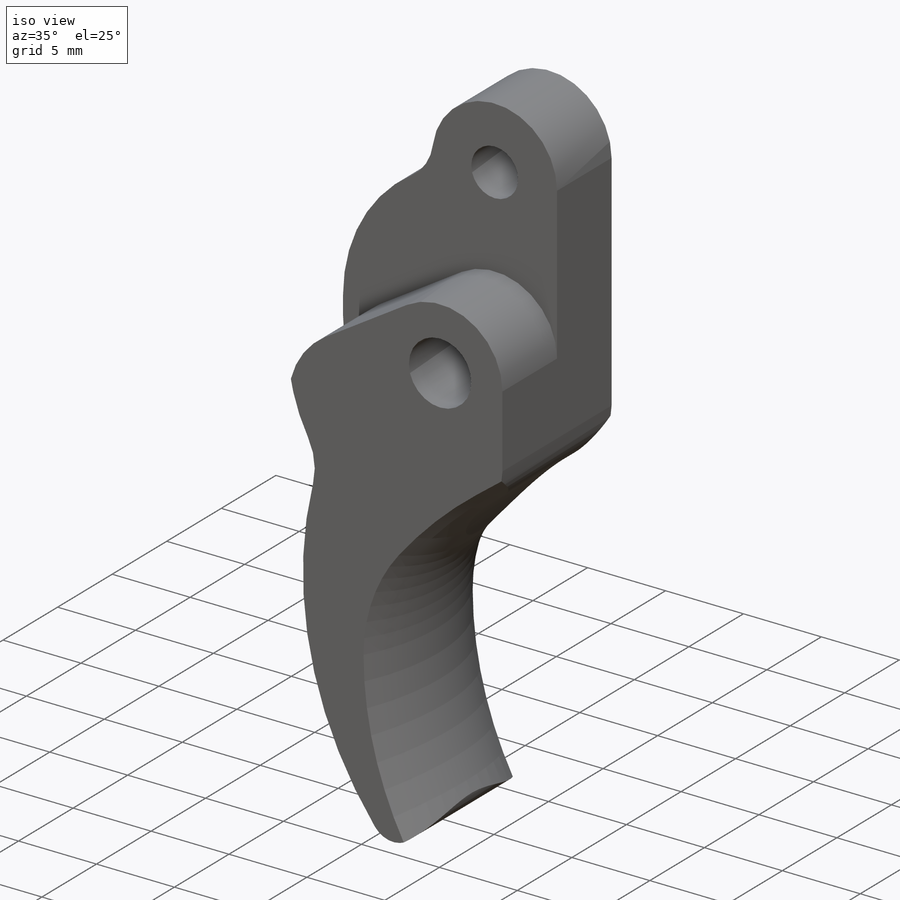
[diagram: iso view]
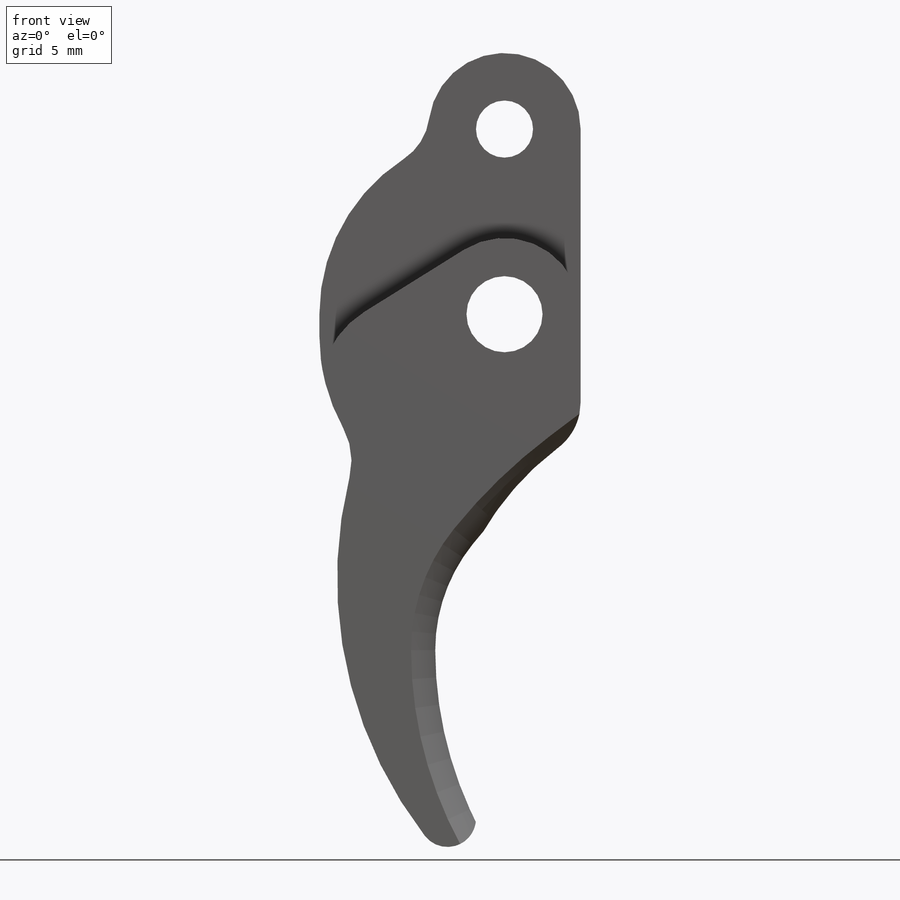
[diagram: front view]
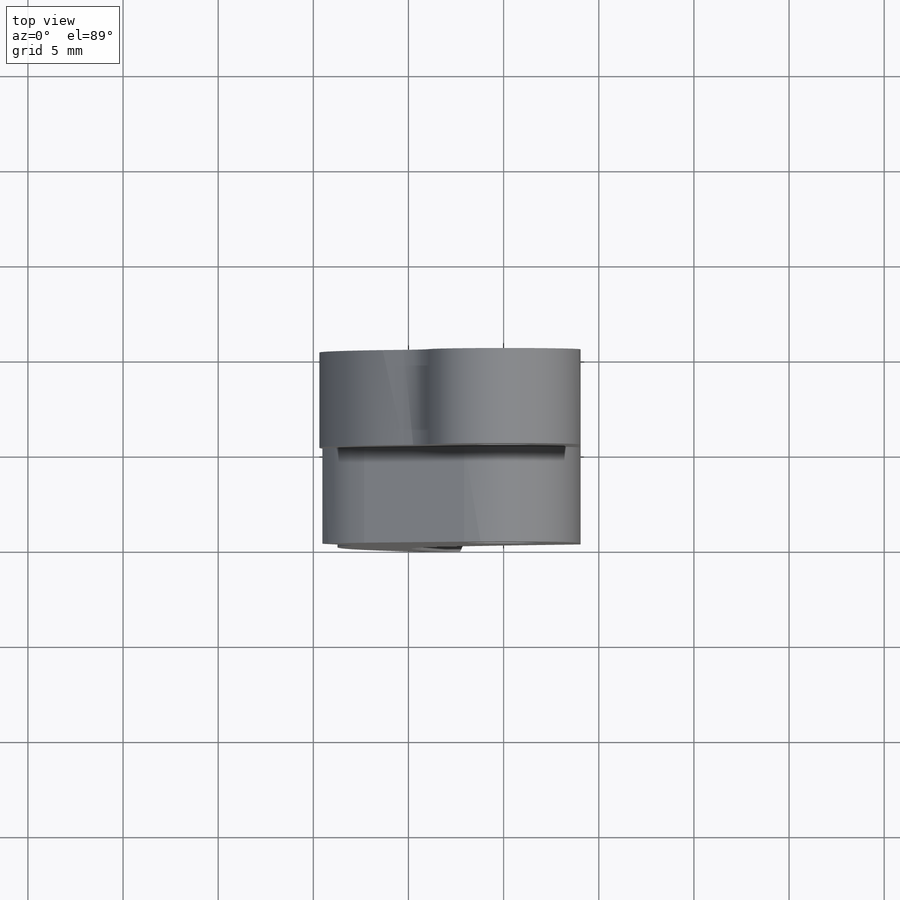
[diagram: top view]
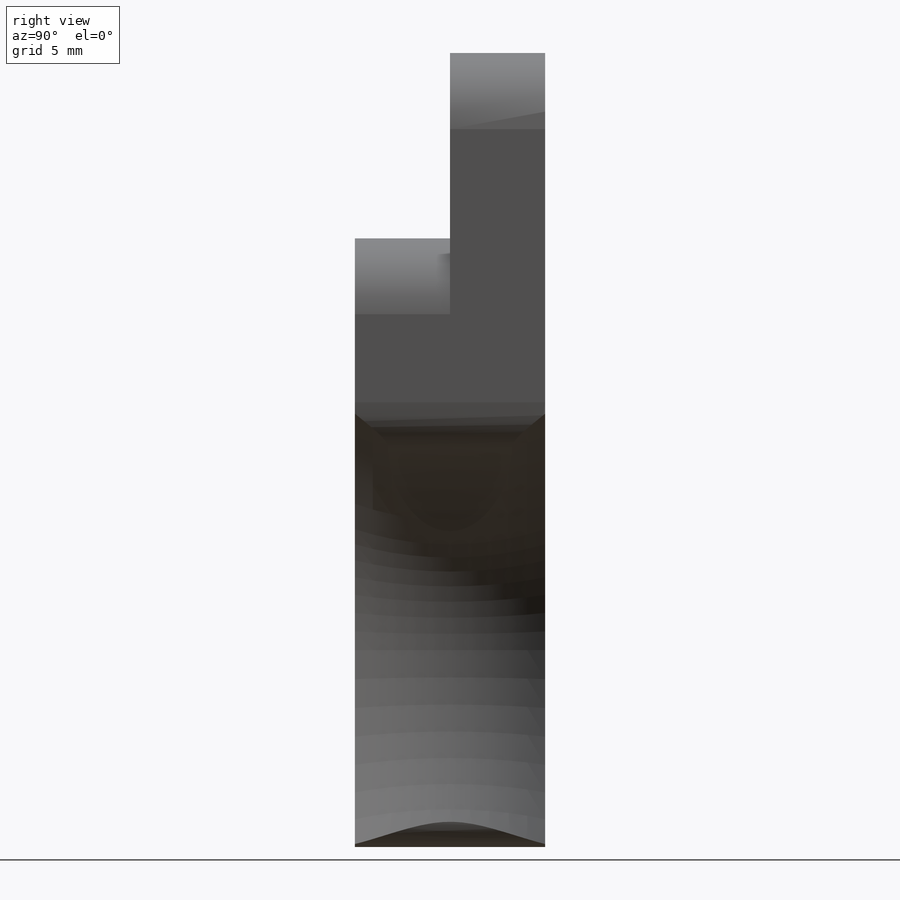
[diagram: right view]
SOLIDWORKS PART (.sldprt)
format: sldprt  version: not decoded by parser v0  size: 375,296 bytes
history: native  units: mm
features: sketch x11, extrude x4, cut_extrude x4, fillet x4, material x1, sweep x1 (+11 scaffold rows collapsed)
feature tree (36):
  scaffold x11  (default folders/planes/origin — collapsed)
  material  "Material <not specified>"
  sketch  "Sketch1"  dims[c1.D3=~4.017274mm c1.D4=~58.255699mm c1.D5=12.0mm c1.D10=~1.150177mm c1.D14=~14.514768mm c1.D15=~6.071939mm c1.D19=~2.561834mm c2.D15=~4.019577mm c2.D17=~5.082664mm c2.D2=4.5mm c2.D4=3.0mm c3.D2=1.0mm c3.D1=6.0mm c4.D2=6.0mm c4.D3=5.0mm c4.D5=~6.168065mm c4.D6=~25.829308mm c5.D6=~11.430916deg c5.D7=~29.12785mm c6.D7=~11.430916deg c6.D8=~13.398363mm c7.D8=90.0deg c8.D8=5.0mm c8.D9=0.0mm c8.D10=~24.598908mm c8.D11=~6.462327mm c8.D12=~14.961726mm c8.D13=~1.121165mm c8.D15=20.0mm c8.D16=~13.54294mm c9.D16=~11.430916deg c9.D17=14.0mm c9.D18=~3.002575mm c9.D19=~2.830757mm c10.D18=9.5mm c10.D19=~14.761204mm c11.D19=~33.556496deg c12.D19=~4.650246mm c12.D15=30.0mm c12.D16=5.0mm c12.D17=51.0mm c12.D2=28.0mm c12.D3=3.0mm c12.D5=26.5mm]
  extrude  "Boss-Extrude1"  Depth=10mm
  sketch  "Sketch8"  dims[D1=~5.792786mm]
  cut_extrude  "Cut-Extrude3"  Depth=5mm
  fillet  "Fillet3"  Radius=5mm
  sketch  "Sketch10"  dims[D1=~4.019677mm]
  cut_extrude  "Cut-Extrude4"  [1 undecoded]
  sketch  "Sketch11"
  extrude  "Boss-Extrude2"  [1 undecoded]
  sketch  "Sketch12"
  cut_extrude  "Cut-Extrude5"  [1 undecoded]
  sketch  "Sketch13"
  extrude  "Boss-Extrude3"  [1 undecoded]
  fillet  "Fillet6"  Radius=3mm
  sketch  "Sketch14"  dims[D1=5.0mm]
  cut_extrude  "Cut-Extrude9"  [1 undecoded]
  sketch  "Sketch16"  dims[D1=3.0mm]
  extrude  "Boss-Extrude4"  [1 undecoded]
  fillet  "Fillet7"  Radius=10mm
  fillet  "Fillet8"  Radius=3mm
  sketch  "Sketch17"
  sketch  "3DSketch1"
  sketch  "Sketch18"  dims[D1=10.0mm D2=1.5mm]
  sweep  "Cut-Sweep2"
decode coverage: 12 of 24 modeling features carry decoded parameters
note: ~ marks probable driven/reference dimensions
note: 6 parameter values undecoded
summary: no parameter record found for 6 features
note: suppression state not decoded; provenance and decode notes live in map.json
